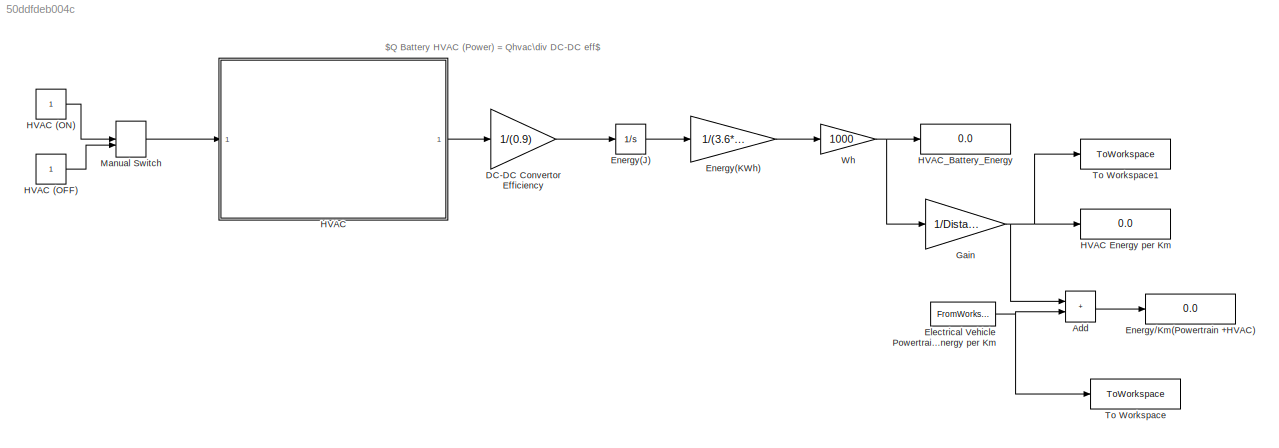
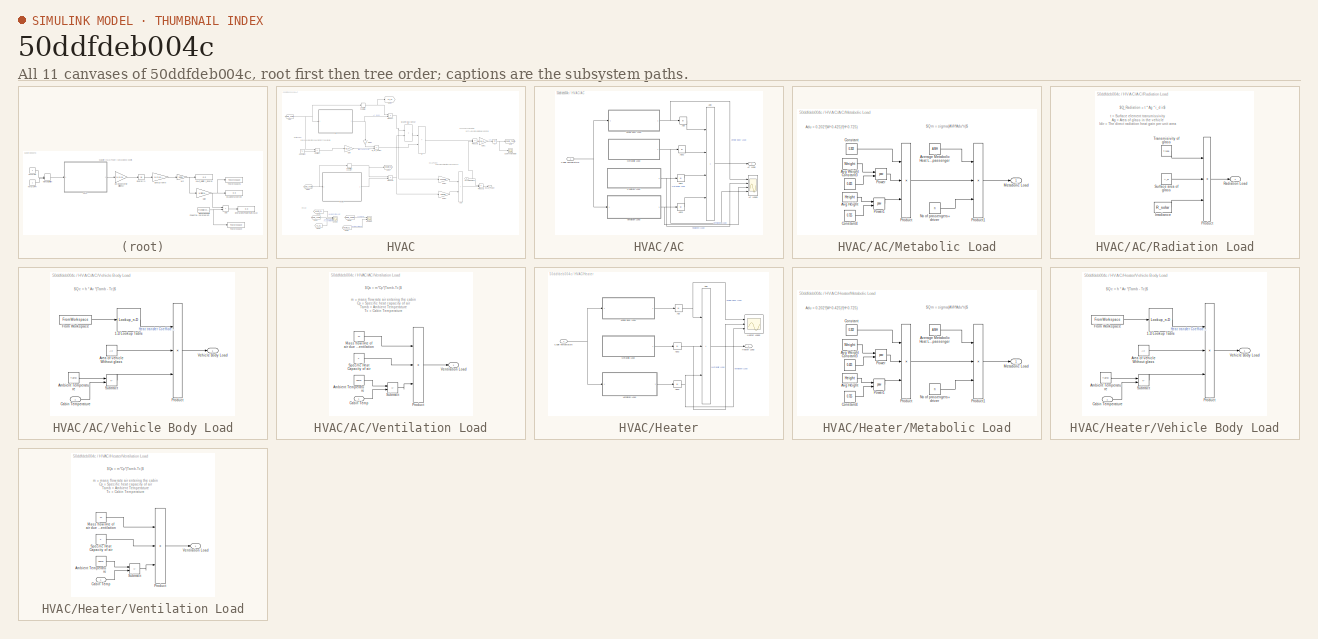
[diagram: thumbnail index - all 11 canvases of the model, root first then tree order]
MODEL slx_50ddfdeb004c
KIND model
CONFIG AbsTol = auto
CONFIG EnableMultiTasking = off
CONFIG FixedStep = 1
CONFIG MaxStep = auto
CONFIG MinStep = auto
CONFIG RelTol = 1e-3
CONFIG SampleTimeConstraint = Unconstrained
CONFIG SolverName = FixedStepAuto
CONFIG StartTime = 0.0
CONFIG StopTime = 1400
BLOCK [Sum] Add
  IconShape = rectangular
  Ports = [2, 1]
BLOCK [Gain] DC-DC Convertor Efficiency
  Gain = 1/(0.9)
BLOCK [FromWorkspace] Electrical Vehicle Powertrain Energy per Km 
  VariableName = E_powertrain
BLOCK [Integrator] Energy(J)
  Ports = [1, 1]
BLOCK [Gain] Energy(KWh)
  Gain = 1/(3.6*10^6)
BLOCK [Display] Energy//Km(Powertrain +HVAC)
  Decimation = 1
  Ports = [1]
BLOCK [Gain] Gain
  Gain = 1/Distance
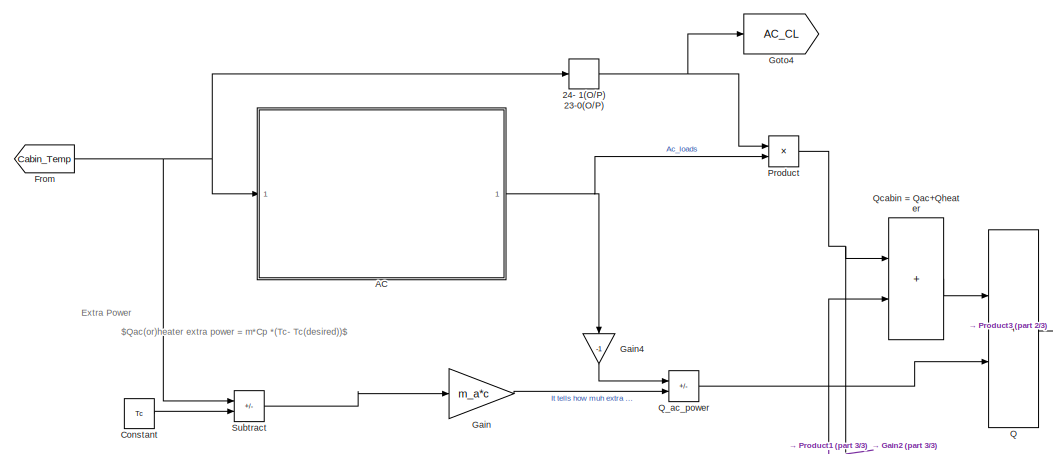
[diagram: HVAC - part 1/3, top left region]
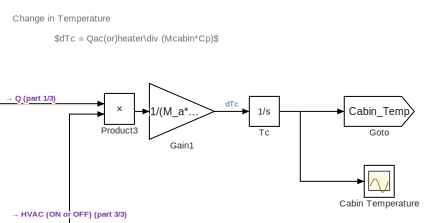
[diagram: HVAC - part 2/3, middle right region]
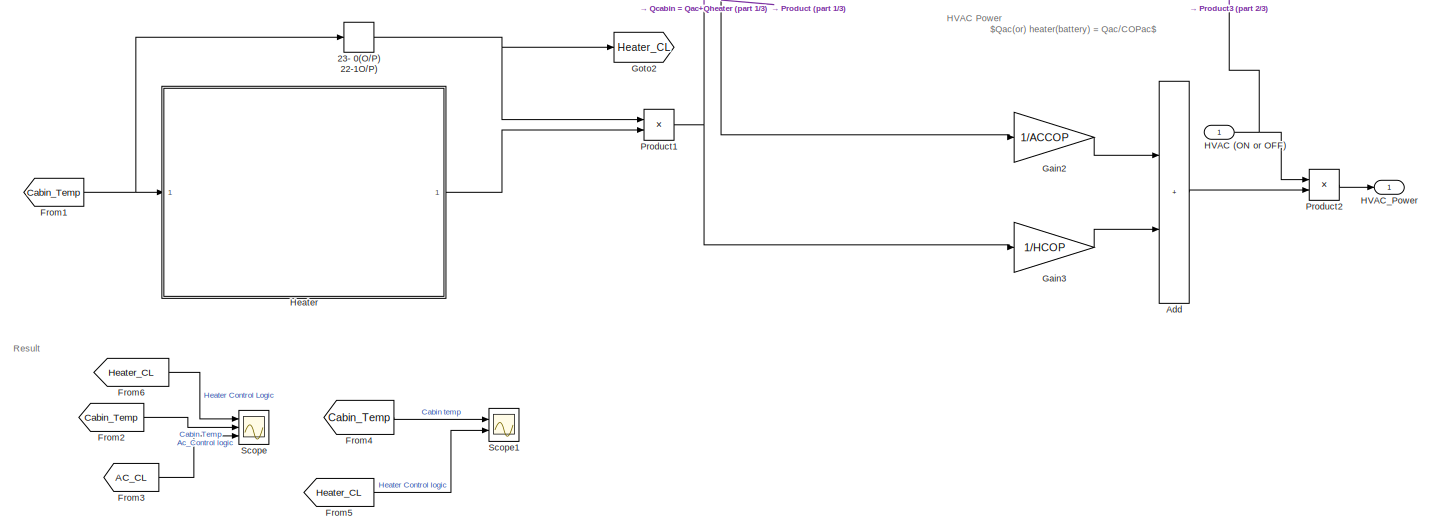
[diagram: HVAC - part 3/3, full width, bottom band]
BLOCK [SubSystem] HVAC
  Ports = [1, 1]
  RequestExecContextInheritance = off
BLOCK [Constant] HVAC (OFF)
BLOCK [Constant] HVAC (ON)
BLOCK [Display] HVAC Energy per Km
  Decimation = 1
  Ports = [1]
BLOCK [Relay] HVAC/23- 0(O//P) 22-1O//P)
  OffOutputValue = 1
  OffSwitchValue = Tc-1
  OnOutputValue = 0
  OnSwitchValue = Tc
BLOCK [Relay] HVAC/24- 1(O//P) 23-0(O//P)
  OffSwitchValue = Tc
  OnSwitchValue = Tc+1
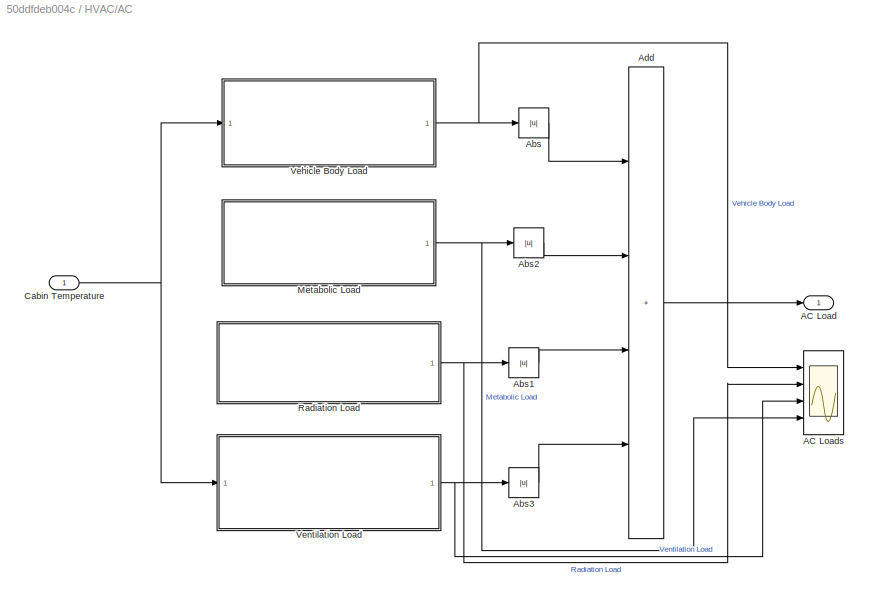
BLOCK [SubSystem] HVAC/AC
  Ports = [1, 1]
  RequestExecContextInheritance = off
BLOCK [Outport] HVAC/AC/AC Load
BLOCK [Scope] HVAC/AC/AC Loads
  Floating = off
  NumInputPorts = 4
  Ports = [4]
  ScopeSpecificationString = Simulink.scopes.TimeScopeBlockCfg('CurrentConfiguration', extmgr.ConfigurationSet(extmgr.Configuration('Core','General UI',true),extmgr.Configuration('Core','Source UI',true),extmgr.Configuration('Sources','WiredSimulink',true,'DataLoggingVariableName','ScopeData3'),extmgr.Configuration('Visuals','Time Domain',true,'SerializedDisplays',{struct('MinYLimReal','-155.65879','MaxYLimReal','17.29542','Y...<+3530ch>
BLOCK [Abs] HVAC/AC/Abs
  NameLocation = top
  SaturateOnIntegerOverflow = off
BLOCK [Abs] HVAC/AC/Abs1
  NameLocation = top
  SaturateOnIntegerOverflow = off
BLOCK [Abs] HVAC/AC/Abs2
  NameLocation = top
  SaturateOnIntegerOverflow = off
BLOCK [Abs] HVAC/AC/Abs3
  NameLocation = top
  SaturateOnIntegerOverflow = off
BLOCK [Sum] HVAC/AC/Add
  IconShape = rectangular
  Inputs = ++++
  Ports = [4, 1]
BLOCK [Inport] HVAC/AC/Cabin Temperature
BLOCK [SubSystem] HVAC/AC/Metabolic Load
  Ports = [0, 1]
  RequestExecContextInheritance = off
BLOCK [Constant] HVAC/AC/Metabolic Load/Average Metabolic Heat Load of passenger
  Value = AMH
BLOCK [Constant] HVAC/AC/Metabolic Load/Avg Height
  Value = Height
BLOCK [Constant] HVAC/AC/Metabolic Load/Avg Weight
  Value = Weight
BLOCK [Constant] HVAC/AC/Metabolic Load/Constant
  Value = 0.202
BLOCK [Constant] HVAC/AC/Metabolic Load/Constant3
  Value = 0.425
BLOCK [Constant] HVAC/AC/Metabolic Load/Constant4
  Value = 0.725
BLOCK [Outport] HVAC/AC/Metabolic Load/Metabolic Load
BLOCK [Constant] HVAC/AC/Metabolic Load/No of passengers+ driver 
  Value = n
BLOCK [Math] HVAC/AC/Metabolic Load/Power
  Operator = pow
  Ports = [2, 1]
BLOCK [Math] HVAC/AC/Metabolic Load/Power1
  Operator = pow
  Ports = [2, 1]
BLOCK [Product] HVAC/AC/Metabolic Load/Product
  Inputs = 3
  Ports = [3, 1]
BLOCK [Product] HVAC/AC/Metabolic Load/Product1
  Inputs = 3
  Ports = [3, 1]
BLOCK [SubSystem] HVAC/AC/Radiation Load
  Ports = [0, 1]
  RequestExecContextInheritance = off
BLOCK [Constant] HVAC/AC/Radiation Load/Irradiance
  Value = R_solar
BLOCK [Product] HVAC/AC/Radiation Load/Product
  Inputs = 3
  Ports = [3, 1]
BLOCK [Outport] HVAC/AC/Radiation Load/Radiation Load
BLOCK [Constant] HVAC/AC/Radiation Load/Surface area of glass
  Value = A_w
BLOCK [Constant] HVAC/AC/Radiation Load/Transmisivity of glass
  Value = Trans
BLOCK [SubSystem] HVAC/AC/Vehicle Body Load
  Ports = [1, 1]
  RequestExecContextInheritance = off
BLOCK [Lookup_n-D] HVAC/AC/Vehicle Body Load/1-D Lookup Table
  BreakpointsForDimension1 = h_v
  InputPortMap = u0
  InternalRulePriority = Speed
  NumberOfTableDimensions = 1
  Ports = [1, 1]
  RndMeth = Simplest
  Table = h_c
BLOCK [Constant] HVAC/AC/Vehicle Body Load/Ambient Temperature
  Value = Tamb
BLOCK [Constant] HVAC/AC/Vehicle Body Load/Area of vehicle Without glass
  Value = Av
BLOCK [Inport] HVAC/AC/Vehicle Body Load/Cabin Temperature
BLOCK [FromWorkspace] HVAC/AC/Vehicle Body Load/From Workspace
  VariableName = Drive_Cycle
BLOCK [Product] HVAC/AC/Vehicle Body Load/Product
  Inputs = 3
  Ports = [3, 1]
BLOCK [Sum] HVAC/AC/Vehicle Body Load/Subtract
  IconShape = rectangular
  Inputs = +-
  Ports = [2, 1]
BLOCK [Outport] HVAC/AC/Vehicle Body Load/Vehicle Body Load
BLOCK [SubSystem] HVAC/AC/Ventilation Load
  Ports = [1, 1]
  RequestExecContextInheritance = off
BLOCK [Constant] HVAC/AC/Ventilation Load/Ambient Temperature
  Value = Tamb
BLOCK [Inport] HVAC/AC/Ventilation Load/Cabin Temp
BLOCK [Constant] HVAC/AC/Ventilation Load/Mass flow rate of air due to ventilation 
  Value = m
BLOCK [Product] HVAC/AC/Ventilation Load/Product
  Inputs = 3
  Ports = [3, 1]
BLOCK [Constant] HVAC/AC/Ventilation Load/Specific Heat Capacity of air
  Value = c
BLOCK [Sum] HVAC/AC/Ventilation Load/Subtract
  IconShape = rectangular
  Inputs = +-
  Ports = [2, 1]
BLOCK [Outport] HVAC/AC/Ventilation Load/Ventilation Load
BLOCK [Sum] HVAC/Add
  IconShape = rectangular
  Ports = [2, 1]
BLOCK [Scope] HVAC/Cabin Temperature
  Floating = off
  NumInputPorts = 1
  Ports = [1]
  ScopeSpecificationString = Simulink.scopes.TimeScopeBlockCfg('CurrentConfiguration', extmgr.ConfigurationSet(extmgr.Configuration('Core','General UI',true),extmgr.Configuration('Core','Source UI',true),extmgr.Configuration('Sources','WiredSimulink',true),extmgr.Configuration('Visuals','Time Domain',true,'SerializedDisplays',{struct('MinYLimReal','-2.87478','MaxYLimReal','25.87299','YLabelReal','','MinYLimMag','0.00000','Max...<+1326ch>
BLOCK [Constant] HVAC/Constant
  Value = Tc
BLOCK [From] HVAC/From
  GotoTag = Cabin_Temp
  TagVisibility = global
BLOCK [From] HVAC/From1
  GotoTag = Cabin_Temp
  TagVisibility = global
BLOCK [From] HVAC/From2
  GotoTag = Cabin_Temp
  TagVisibility = global
BLOCK [From] HVAC/From3
  GotoTag = AC_CL
  TagVisibility = global
BLOCK [From] HVAC/From4
  GotoTag = Cabin_Temp
  TagVisibility = global
BLOCK [From] HVAC/From5
  GotoTag = Heater_CL
  TagVisibility = global
BLOCK [From] HVAC/From6
  GotoTag = Heater_CL
  TagVisibility = global
BLOCK [Gain] HVAC/Gain
  Gain = m_a*c
BLOCK [Gain] HVAC/Gain1
  Gain = 1/(M_a*c)
BLOCK [Gain] HVAC/Gain2
  Gain = 1/ACCOP
BLOCK [Gain] HVAC/Gain3
  Gain = 1/HCOP
BLOCK [Gain] HVAC/Gain4
  Gain = -1
  NameLocation = left
BLOCK [Goto] HVAC/Goto
  GotoTag = Cabin_Temp
  TagVisibility = global
BLOCK [Goto] HVAC/Goto2
  GotoTag = Heater_CL
  TagVisibility = global
BLOCK [Goto] HVAC/Goto4
  GotoTag = AC_CL
  TagVisibility = global
BLOCK [Inport] HVAC/HVAC (ON or OFF)
BLOCK [Outport] HVAC/HVAC_Power
BLOCK [SubSystem] HVAC/Heater
  Ports = [1, 1]
  RequestExecContextInheritance = off
BLOCK [Abs] HVAC/Heater/Abs
  NameLocation = top
  SaturateOnIntegerOverflow = off
BLOCK [Abs] HVAC/Heater/Abs2
  NameLocation = top
  SaturateOnIntegerOverflow = off
BLOCK [Abs] HVAC/Heater/Abs3
  NameLocation = top
  SaturateOnIntegerOverflow = off
BLOCK [Sum] HVAC/Heater/Add
  IconShape = rectangular
  Inputs = +++
  Ports = [3, 1]
BLOCK [Inport] HVAC/Heater/Cabin Temperature
BLOCK [Outport] HVAC/Heater/Heater Load
BLOCK [Scope] HVAC/Heater/Heater Loads
  Floating = off
  NumInputPorts = 3
  Ports = [3]
  ScopeSpecificationString = Simulink.scopes.TimeScopeBlockCfg('CurrentConfiguration', extmgr.ConfigurationSet(extmgr.Configuration('Core','General UI',true),extmgr.Configuration('Core','Source UI',true),extmgr.Configuration('Sources','WiredSimulink',true,'DataLoggingVariableName','ScopeData1'),extmgr.Configuration('Visuals','Time Domain',true,'SerializedDisplays',{struct('MinYLimReal','-17.29542','MaxYLimReal','155.65879','Y...<+2794ch>
BLOCK [SubSystem] HVAC/Heater/Metabolic Load
  Ports = [0, 1]
  RequestExecContextInheritance = off
BLOCK [Constant] HVAC/Heater/Metabolic Load/Average Metabolic Heat Load of passenger
  Value = AMH
BLOCK [Constant] HVAC/Heater/Metabolic Load/Avg Height
  Value = Height
BLOCK [Constant] HVAC/Heater/Metabolic Load/Avg Weight
  Value = Weight
BLOCK [Constant] HVAC/Heater/Metabolic Load/Constant
  Value = 0.202
BLOCK [Constant] HVAC/Heater/Metabolic Load/Constant3
  Value = 0.425
BLOCK [Constant] HVAC/Heater/Metabolic Load/Constant4
  Value = 0.725
BLOCK [Outport] HVAC/Heater/Metabolic Load/Metabolic Load
BLOCK [Constant] HVAC/Heater/Metabolic Load/No of passengers+ driver 
  Value = n
BLOCK [Math] HVAC/Heater/Metabolic Load/Power
  Operator = pow
  Ports = [2, 1]
BLOCK [Math] HVAC/Heater/Metabolic Load/Power1
  Operator = pow
  Ports = [2, 1]
BLOCK [Product] HVAC/Heater/Metabolic Load/Product
  Inputs = 3
  Ports = [3, 1]
BLOCK [Product] HVAC/Heater/Metabolic Load/Product1
  Inputs = 3
  Ports = [3, 1]
BLOCK [SubSystem] HVAC/Heater/Vehicle Body Load
  Ports = [1, 1]
  RequestExecContextInheritance = off
BLOCK [Lookup_n-D] HVAC/Heater/Vehicle Body Load/1-D Lookup Table
  BreakpointsForDimension1 = h_v
  InputPortMap = u0
  InternalRulePriority = Speed
  NumberOfTableDimensions = 1
  Ports = [1, 1]
  RndMeth = Simplest
  Table = h_c
BLOCK [Constant] HVAC/Heater/Vehicle Body Load/Ambient Temperature
  Value = Tamb
BLOCK [Constant] HVAC/Heater/Vehicle Body Load/Area of vehicle Without glass
  Value = Av
BLOCK [Inport] HVAC/Heater/Vehicle Body Load/Cabin Temperature
BLOCK [FromWorkspace] HVAC/Heater/Vehicle Body Load/From Workspace
  VariableName = Drive_Cycle
BLOCK [Product] HVAC/Heater/Vehicle Body Load/Product
  Inputs = 3
  Ports = [3, 1]
BLOCK [Sum] HVAC/Heater/Vehicle Body Load/Subtract
  IconShape = rectangular
  Inputs = +-
  Ports = [2, 1]
BLOCK [Outport] HVAC/Heater/Vehicle Body Load/Vehicle Body Load
BLOCK [SubSystem] HVAC/Heater/Ventilation Load
  Ports = [1, 1]
  RequestExecContextInheritance = off
BLOCK [Constant] HVAC/Heater/Ventilation Load/Ambient Temperature
  Value = Tamb
BLOCK [Inport] HVAC/Heater/Ventilation Load/Cabin Temp
BLOCK [Constant] HVAC/Heater/Ventilation Load/Mass flow rate of air due to ventilation 
  Value = m
BLOCK [Product] HVAC/Heater/Ventilation Load/Product
  Inputs = 3
  Ports = [3, 1]
BLOCK [Constant] HVAC/Heater/Ventilation Load/Specific Heat Capacity of air
  Value = c
BLOCK [Sum] HVAC/Heater/Ventilation Load/Subtract
  IconShape = rectangular
  Inputs = +-
  Ports = [2, 1]
BLOCK [Outport] HVAC/Heater/Ventilation Load/Ventilation Load
BLOCK [Product] HVAC/Product
  Ports = [2, 1]
BLOCK [Product] HVAC/Product1
  Ports = [2, 1]
BLOCK [Product] HVAC/Product2
  Ports = [2, 1]
BLOCK [Product] HVAC/Product3
  Ports = [2, 1]
BLOCK [Sum] HVAC/Q
  IconShape = rectangular
  Ports = [2, 1]
BLOCK [Sum] HVAC/Q_ac_power
  IconShape = rectangular
  Inputs = +-
  Ports = [2, 1]
BLOCK [Sum] HVAC/Qcabin = Qac+Qheater
  IconShape = rectangular
  Ports = [2, 1]
BLOCK [Scope] HVAC/Scope
  Floating = off
  NumInputPorts = 3
  Ports = [3]
  ScopeSpecificationString = Simulink.scopes.TimeScopeBlockCfg('CurrentConfiguration', extmgr.ConfigurationSet(extmgr.Configuration('Core','General UI',true),extmgr.Configuration('Core','Source UI',true),extmgr.Configuration('Sources','WiredSimulink',true,'DataLoggingVariableName','ScopeData1'),extmgr.Configuration('Visuals','Time Domain',true,'SerializedDisplays',{struct('MinYLimReal','0.9','MaxYLimReal','1.1','YLabelReal','...<+2799ch>
BLOCK [Scope] HVAC/Scope1
  Floating = off
  NumInputPorts = 2
  Ports = [2]
  ScopeSpecificationString = Simulink.scopes.TimeScopeBlockCfg('CurrentConfiguration', extmgr.ConfigurationSet(extmgr.Configuration('Core','General UI',true),extmgr.Configuration('Core','Source UI',true),extmgr.Configuration('Sources','WiredSimulink',true,'DataLoggingVariableName','ScopeData2'),extmgr.Configuration('Visuals','Time Domain',true,'SerializedDisplays',{struct('MinYLimReal','-2.87478','MaxYLimReal','25.87299','YLa...<+2080ch>
BLOCK [Sum] HVAC/Subtract
  IconShape = rectangular
  Inputs = +-
  Ports = [2, 1]
BLOCK [Integrator] HVAC/Tc
  InitialCondition = Ti
  Ports = [1, 1]
BLOCK [Display] HVAC_Battery_Energy
  Decimation = 1
  Ports = [1]
BLOCK [ManualSwitch] Manual Switch
BLOCK [ToWorkspace] To Workspace
  FixptAsFi = on
  MaxDataPoints = inf
  Ports = [1]
  SampleTime = -1
  SaveFormat = Timeseries
  VariableName = Powertrain_Energy
BLOCK [ToWorkspace] To Workspace1
  FixptAsFi = on
  MaxDataPoints = inf
  Ports = [1]
  SampleTime = -1
  SaveFormat = Timeseries
  VariableName = HVAC_Energy
BLOCK [Gain] Wh
  Gain = 1000
ANNOTATION (root): $Q Battery HVAC (Power) = Qhvac\div DC-DC eff$
ANNOTATION HVAC: $Qac(or)heater extra power = m*Cp *(Tc- Tc(desired))$
ANNOTATION HVAC: $dTc = Qac(or)heater\div (Mcabin*Cp)$
ANNOTATION HVAC: $Qac(or) heater(battery) = Qac/COPac$
ANNOTATION HVAC: Change in Temperature
ANNOTATION HVAC: Extra Power
ANNOTATION HVAC: HVAC Power
ANNOTATION HVAC: Result
ANNOTATION HVAC/AC/Metabolic Load: Adu = 0.202*(W^0.425)*(H^0.725)
ANNOTATION HVAC/AC/Metabolic Load: $Qm = sigma(AVH*Adu*n)$
ANNOTATION HVAC/AC/Radiation Load: $Q_Radiation = t * Ag * i_d ir$
ANNOTATION HVAC/AC/Radiation Load: t = Surface element transmissivity Ag = Area of glass in the vehicle Idir = The direct radiation heat gain per unit area
ANNOTATION HVAC/AC/Vehicle Body Load: $Qc = h * Av *(Tamb - Tc)$
ANNOTATION HVAC/AC/Ventilation Load: $Qa = m*Cp*(Tamb-Tc)$
ANNOTATION HVAC/AC/Ventilation Load: m = mass flow rate air entering the cabin Cp = Specific heat capacity of air Tamb = Ambient Temperature Tc = Cabin Temperature
ANNOTATION HVAC/Heater/Metabolic Load: Adu = 0.202*(W^0.425)*(H^0.725)
ANNOTATION HVAC/Heater/Metabolic Load: $Qm = sigma(AVH*Adu*n)$
ANNOTATION HVAC/Heater/Vehicle Body Load: $Qc = h * Av *(Tamb - Tc)$
ANNOTATION HVAC/Heater/Ventilation Load: $Qa = m*Cp*(Tamb-Tc)$
ANNOTATION HVAC/Heater/Ventilation Load: m = mass flow rate air entering the cabin Cp = Specific heat capacity of air Tamb = Ambient Temperature Tc = Cabin Temperature
LINE Add:1 -> Energy//Km(Powertrain +HVAC):1
LINE DC-DC Convertor Efficiency:1 -> Energy(J):1
NET Electrical Vehicle Powertrain Energy per Km :1 -> Add:2, To Workspace:1
LINE Energy(J):1 -> Energy(KWh):1
LINE Energy(KWh):1 -> Wh:1
NET Gain:1 -> Add:1, HVAC Energy per Km:1, To Workspace1:1
LINE HVAC (OFF):1 -> Manual Switch:2
LINE HVAC (ON):1 -> Manual Switch:1
NET HVAC/23- 0(O//P) 22-1O//P):1 -> HVAC/Goto2:1, HVAC/Product1:1
NET HVAC/24- 1(O//P) 23-0(O//P):1 -> HVAC/Goto4:1, HVAC/Product:1
LINE HVAC/AC/Abs1:1 -> HVAC/AC/Add:3
LINE HVAC/AC/Abs2:1 -> HVAC/AC/Add:2
LINE HVAC/AC/Abs3:1 -> HVAC/AC/Add:4
LINE HVAC/AC/Abs:1 -> HVAC/AC/Add:1
LINE HVAC/AC/Add:1 -> HVAC/AC/AC Load:1
NET HVAC/AC/Cabin Temperature:1 -> HVAC/AC/Vehicle Body Load:1, HVAC/AC/Ventilation Load:1
LINE HVAC/AC/Metabolic Load/Average Metabolic Heat Load of passenger:1 -> HVAC/AC/Metabolic Load/Product1:1
LINE HVAC/AC/Metabolic Load/Avg Height:1 -> HVAC/AC/Metabolic Load/Power1:1
LINE HVAC/AC/Metabolic Load/Avg Weight:1 -> HVAC/AC/Metabolic Load/Power:1
LINE HVAC/AC/Metabolic Load/Constant3:1 -> HVAC/AC/Metabolic Load/Power:2
LINE HVAC/AC/Metabolic Load/Constant4:1 -> HVAC/AC/Metabolic Load/Power1:2
LINE HVAC/AC/Metabolic Load/Constant:1 -> HVAC/AC/Metabolic Load/Product:1
LINE HVAC/AC/Metabolic Load/No of passengers+ driver :1 -> HVAC/AC/Metabolic Load/Product1:3
LINE HVAC/AC/Metabolic Load/Power1:1 -> HVAC/AC/Metabolic Load/Product:3
LINE HVAC/AC/Metabolic Load/Power:1 -> HVAC/AC/Metabolic Load/Product:2
LINE HVAC/AC/Metabolic Load/Product1:1 -> HVAC/AC/Metabolic Load/Metabolic Load:1
LINE HVAC/AC/Metabolic Load/Product:1 -> HVAC/AC/Metabolic Load/Product1:2
NET HVAC/AC/Metabolic Load:1 -> HVAC/AC/AC Loads:4, HVAC/AC/Abs2:1
LINE HVAC/AC/Radiation Load/Irradiance:1 -> HVAC/AC/Radiation Load/Product:3
LINE HVAC/AC/Radiation Load/Product:1 -> HVAC/AC/Radiation Load/Radiation Load:1
LINE HVAC/AC/Radiation Load/Surface area of glass:1 -> HVAC/AC/Radiation Load/Product:2
LINE HVAC/AC/Radiation Load/Transmisivity of glass:1 -> HVAC/AC/Radiation Load/Product:1
NET HVAC/AC/Radiation Load:1 -> HVAC/AC/AC Loads:2, HVAC/AC/Abs1:1
LINE HVAC/AC/Vehicle Body Load/1-D Lookup Table:1 -> HVAC/AC/Vehicle Body Load/Product:1
LINE HVAC/AC/Vehicle Body Load/Ambient Temperature:1 -> HVAC/AC/Vehicle Body Load/Subtract:1
LINE HVAC/AC/Vehicle Body Load/Area of vehicle Without glass:1 -> HVAC/AC/Vehicle Body Load/Product:2
LINE HVAC/AC/Vehicle Body Load/Cabin Temperature:1 -> HVAC/AC/Vehicle Body Load/Subtract:2
LINE HVAC/AC/Vehicle Body Load/From Workspace:1 -> HVAC/AC/Vehicle Body Load/1-D Lookup Table:1
LINE HVAC/AC/Vehicle Body Load/Product:1 -> HVAC/AC/Vehicle Body Load/Vehicle Body Load:1
LINE HVAC/AC/Vehicle Body Load/Subtract:1 -> HVAC/AC/Vehicle Body Load/Product:3
NET HVAC/AC/Vehicle Body Load:1 -> HVAC/AC/AC Loads:1, HVAC/AC/Abs:1
LINE HVAC/AC/Ventilation Load/Ambient Temperature:1 -> HVAC/AC/Ventilation Load/Subtract:1
LINE HVAC/AC/Ventilation Load/Cabin Temp:1 -> HVAC/AC/Ventilation Load/Subtract:2
LINE HVAC/AC/Ventilation Load/Mass flow rate of air due to ventilation :1 -> HVAC/AC/Ventilation Load/Product:1
LINE HVAC/AC/Ventilation Load/Product:1 -> HVAC/AC/Ventilation Load/Ventilation Load:1
LINE HVAC/AC/Ventilation Load/Specific Heat Capacity of air:1 -> HVAC/AC/Ventilation Load/Product:2
LINE HVAC/AC/Ventilation Load/Subtract:1 -> HVAC/AC/Ventilation Load/Product:3
NET HVAC/AC/Ventilation Load:1 -> HVAC/AC/AC Loads:3, HVAC/AC/Abs3:1
NET HVAC/AC:1 -> HVAC/Gain4:1, HVAC/Product:2
LINE HVAC/Add:1 -> HVAC/Product2:2
LINE HVAC/Constant:1 -> HVAC/Subtract:2
NET HVAC/From1:1 -> HVAC/23- 0(O//P) 22-1O//P):1, HVAC/Heater:1
LINE HVAC/From2:1 -> HVAC/Scope:2
LINE HVAC/From3:1 -> HVAC/Scope:3
LINE HVAC/From4:1 -> HVAC/Scope1:1
LINE HVAC/From5:1 -> HVAC/Scope1:2
LINE HVAC/From6:1 -> HVAC/Scope:1
NET HVAC/From:1 -> HVAC/24- 1(O//P) 23-0(O//P):1, HVAC/AC:1, HVAC/Subtract:1
LINE HVAC/Gain1:1 -> HVAC/Tc:1
LINE HVAC/Gain2:1 -> HVAC/Add:1
LINE HVAC/Gain3:1 -> HVAC/Add:2
LINE HVAC/Gain4:1 -> HVAC/Q_ac_power:1
LINE HVAC/Gain:1 -> HVAC/Q_ac_power:2
NET HVAC/HVAC (ON or OFF):1 -> HVAC/Product2:1, HVAC/Product3:2
NET HVAC/Heater/Abs2:1 -> HVAC/Heater/Add:2, HVAC/Heater/Heater Loads:2
NET HVAC/Heater/Abs3:1 -> HVAC/Heater/Add:3, HVAC/Heater/Heater Loads:3
NET HVAC/Heater/Abs:1 -> HVAC/Heater/Add:1, HVAC/Heater/Heater Loads:1
LINE HVAC/Heater/Add:1 -> HVAC/Heater/Heater Load:1
NET HVAC/Heater/Cabin Temperature:1 -> HVAC/Heater/Vehicle Body Load:1, HVAC/Heater/Ventilation Load:1
LINE HVAC/Heater/Metabolic Load/Average Metabolic Heat Load of passenger:1 -> HVAC/Heater/Metabolic Load/Product1:1
LINE HVAC/Heater/Metabolic Load/Avg Height:1 -> HVAC/Heater/Metabolic Load/Power1:1
LINE HVAC/Heater/Metabolic Load/Avg Weight:1 -> HVAC/Heater/Metabolic Load/Power:1
LINE HVAC/Heater/Metabolic Load/Constant3:1 -> HVAC/Heater/Metabolic Load/Power:2
LINE HVAC/Heater/Metabolic Load/Constant4:1 -> HVAC/Heater/Metabolic Load/Power1:2
LINE HVAC/Heater/Metabolic Load/Constant:1 -> HVAC/Heater/Metabolic Load/Product:1
LINE HVAC/Heater/Metabolic Load/No of passengers+ driver :1 -> HVAC/Heater/Metabolic Load/Product1:3
LINE HVAC/Heater/Metabolic Load/Power1:1 -> HVAC/Heater/Metabolic Load/Product:3
LINE HVAC/Heater/Metabolic Load/Power:1 -> HVAC/Heater/Metabolic Load/Product:2
LINE HVAC/Heater/Metabolic Load/Product1:1 -> HVAC/Heater/Metabolic Load/Metabolic Load:1
LINE HVAC/Heater/Metabolic Load/Product:1 -> HVAC/Heater/Metabolic Load/Product1:2
LINE HVAC/Heater/Metabolic Load:1 -> HVAC/Heater/Abs2:1
LINE HVAC/Heater/Vehicle Body Load/1-D Lookup Table:1 -> HVAC/Heater/Vehicle Body Load/Product:1
LINE HVAC/Heater/Vehicle Body Load/Ambient Temperature:1 -> HVAC/Heater/Vehicle Body Load/Subtract:1
LINE HVAC/Heater/Vehicle Body Load/Area of vehicle Without glass:1 -> HVAC/Heater/Vehicle Body Load/Product:2
LINE HVAC/Heater/Vehicle Body Load/Cabin Temperature:1 -> HVAC/Heater/Vehicle Body Load/Subtract:2
LINE HVAC/Heater/Vehicle Body Load/From Workspace:1 -> HVAC/Heater/Vehicle Body Load/1-D Lookup Table:1
LINE HVAC/Heater/Vehicle Body Load/Product:1 -> HVAC/Heater/Vehicle Body Load/Vehicle Body Load:1
LINE HVAC/Heater/Vehicle Body Load/Subtract:1 -> HVAC/Heater/Vehicle Body Load/Product:3
LINE HVAC/Heater/Vehicle Body Load:1 -> HVAC/Heater/Abs:1
LINE HVAC/Heater/Ventilation Load/Ambient Temperature:1 -> HVAC/Heater/Ventilation Load/Subtract:1
LINE HVAC/Heater/Ventilation Load/Cabin Temp:1 -> HVAC/Heater/Ventilation Load/Subtract:2
LINE HVAC/Heater/Ventilation Load/Mass flow rate of air due to ventilation :1 -> HVAC/Heater/Ventilation Load/Product:1
LINE HVAC/Heater/Ventilation Load/Product:1 -> HVAC/Heater/Ventilation Load/Ventilation Load:1
LINE HVAC/Heater/Ventilation Load/Specific Heat Capacity of air:1 -> HVAC/Heater/Ventilation Load/Product:2
LINE HVAC/Heater/Ventilation Load/Subtract:1 -> HVAC/Heater/Ventilation Load/Product:3
LINE HVAC/Heater/Ventilation Load:1 -> HVAC/Heater/Abs3:1
LINE HVAC/Heater:1 -> HVAC/Product1:2
NET HVAC/Product1:1 -> HVAC/Gain3:1, HVAC/Qcabin = Qac+Qheater:2
LINE HVAC/Product2:1 -> HVAC/HVAC_Power:1
LINE HVAC/Product3:1 -> HVAC/Gain1:1
NET HVAC/Product:1 -> HVAC/Gain2:1, HVAC/Qcabin = Qac+Qheater:1
LINE HVAC/Q:1 -> HVAC/Product3:1
LINE HVAC/Q_ac_power:1 -> HVAC/Q:2
LINE HVAC/Qcabin = Qac+Qheater:1 -> HVAC/Q:1
LINE HVAC/Subtract:1 -> HVAC/Gain:1
NET HVAC/Tc:1 -> HVAC/Cabin Temperature:1, HVAC/Goto:1
LINE HVAC:1 -> DC-DC Convertor Efficiency:1
LINE Manual Switch:1 -> HVAC:1
NET Wh:1 -> Gain:1, HVAC_Battery_Energy:1
note: NET lines group one-source signal fan-out (src -> all destinations, sorted); 1:1 wires keep LINE
